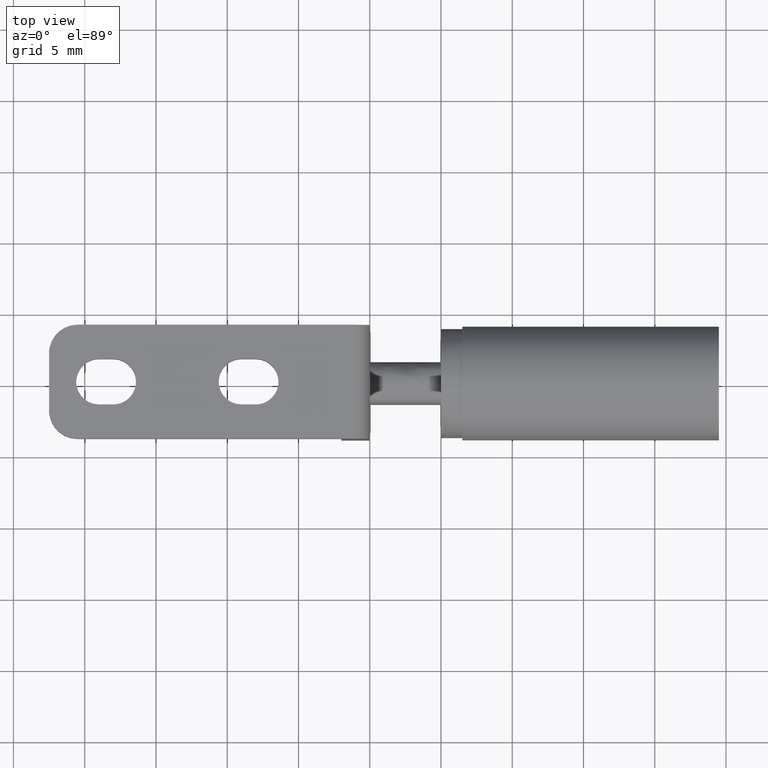
[diagram: clean part render]
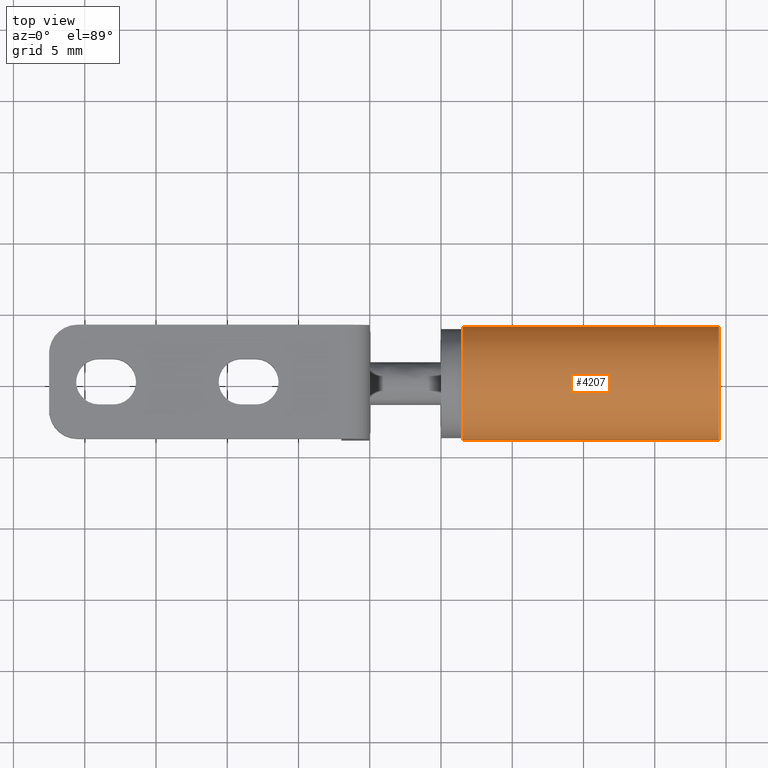
[diagram: same view with one face highlighted and labeled with its STEP entity id]
A machine part, top view. The second image highlights one B-rep face of the part: STEP entity #4207.
In plain terms, the highlighted face is a freeform B-spline surface patch.
Its self-contained STEP definition (entity closure, byte-faithful):
#4040=CARTESIAN_POINT('',(24.500000000000000,1.500000000000000,-3.708098999999890));
#4041=VERTEX_POINT('',#4040);
#4054=CARTESIAN_POINT('',(6.500000000000000,1.500000000000000,-3.708098999999890));
#4055=VERTEX_POINT('',#4054);
#4061=CARTESIAN_POINT('',(24.500000000000000,1.500000000000000,-3.708098999999890));
#4062=CARTESIAN_POINT('',(6.500000000000000,1.500000000000000,-3.708098999999890));
#4063=QUASI_UNIFORM_CURVE('',1,(#4061,#4062),.UNSPECIFIED.,.F.,.U.);
#4064=EDGE_CURVE('',#4041,#4055,#4063,.T.);
#4104=CARTESIAN_POINT('',(24.500000000000000,-1.500000000000000,-3.708098999999890));
#4105=VERTEX_POINT('',#4104);
#4111=CARTESIAN_POINT('',(6.500000000000000,-1.500000000000000,-3.708098999999890));
#4112=VERTEX_POINT('',#4111);
#4113=CARTESIAN_POINT('',(24.500000000000000,-1.500000000000000,-3.708098999999890));
#4114=CARTESIAN_POINT('',(6.500000000000000,-1.500000000000000,-3.708098999999890));
#4115=QUASI_UNIFORM_CURVE('',1,(#4113,#4114),.UNSPECIFIED.,.F.,.U.);
#4116=EDGE_CURVE('',#4105,#4112,#4115,.T.);
#4139=CARTESIAN_POINT('',(24.949999999999999,1.402419350777658,-3.746093960989815));
#4140=CARTESIAN_POINT('',(6.038750000000000,1.402419350777658,-3.746093960989815));
#4141=CARTESIAN_POINT('',(24.949999999999999,4.545765411799646,-2.569324400996401));
#4142=CARTESIAN_POINT('',(6.038749999999999,4.545765411799646,-2.569324400996401));
#4143=CARTESIAN_POINT('',(24.949999999999999,3.932709940882361,0.730611059925211));
#4144=CARTESIAN_POINT('',(6.038750000000000,3.932709940882361,0.730611059925211));
#4145=CARTESIAN_POINT('',(24.949999999999999,3.319654469965077,4.030546520846822));
#4146=CARTESIAN_POINT('',(6.038749999999999,3.319654469965077,4.030546520846822));
#4147=CARTESIAN_POINT('',(24.949999999999999,-0.036603521723970,3.999832519268449));
#4148=CARTESIAN_POINT('',(6.038750000000000,-0.036603521723970,3.999832519268449));
#4149=CARTESIAN_POINT('',(24.949999999999999,-3.392861513413018,3.969118517690077));
#4150=CARTESIAN_POINT('',(6.038749999999999,-3.392861513413018,3.969118517690077));
#4151=CARTESIAN_POINT('',(24.949999999999999,-3.945422210569480,0.658516195962576));
#4152=CARTESIAN_POINT('',(6.038750000000000,-3.945422210569480,0.658516195962576));
#4153=CARTESIAN_POINT('',(24.949999999999999,-4.497982907725942,-2.652086125764923));
#4154=CARTESIAN_POINT('',(6.038749999999999,-4.497982907725942,-2.652086125764923));
#4155=CARTESIAN_POINT('',(24.949999999999999,-1.333627232260074,-3.771132244482327));
#4156=CARTESIAN_POINT('',(6.038750000000000,-1.333627232260074,-3.771132244482327));
#4164=(BOUNDED_SURFACE()B_SPLINE_SURFACE(1,2,((#4139,#4141,#4143,#4145,#4147,#4149,#4151,#4153,#4155),(#4140,#4142,#4144,#4146,#4148,#4150,#4152,#4154,#4156)),.UNSPECIFIED.,.F.,.F.,.U.)B_SPLINE_SURFACE_WITH_KNOTS((2,2),(3,2,2,2,3),(0.0,18.911249999999999),(0.0,5.823523748259236,11.647047496518470,17.470571244777709,23.294094993036939),.UNSPECIFIED.)GEOMETRIC_REPRESENTATION_ITEM()RATIONAL_B_SPLINE_SURFACE(((1.0,0.766044443118978,1.0,0.766044443118978,1.0,0.766044443118978,1.0,0.766044443118978,1.0),(1.0,0.766044443118978,1.0,0.766044443118978,1.0,0.766044443118978,1.0,0.766044443118978,1.0)))REPRESENTATION_ITEM('')SURFACE());
#4165=CARTESIAN_POINT('',(6.500000000000000,1.500000000000000,-3.708098999999890));
#4166=CARTESIAN_POINT('',(6.499999999999999,4.556060525679802,-2.471861810696168));
#4167=CARTESIAN_POINT('',(6.500000000000000,3.926346701273055,0.764069094651916));
#4168=CARTESIAN_POINT('',(6.499999999999999,3.296632876866310,4.000000000000001));
#4169=CARTESIAN_POINT('',(6.500000000000000,0.0,4.0));
#4170=CARTESIAN_POINT('',(6.499999999999999,-3.296632876866309,4.000000000000001));
#4171=CARTESIAN_POINT('',(6.500000000000000,-3.926346701273055,0.764069094651918));
#4172=CARTESIAN_POINT('',(6.499999999999999,-4.556060525679802,-2.471861810696165));
#4173=CARTESIAN_POINT('',(6.500000000000000,-1.500000000000000,-3.708098999999890));
#4181=(BOUNDED_CURVE()B_SPLINE_CURVE(2,(#4165,#4166,#4167,#4168,#4169,#4170,#4171,#4172,#4173),.UNSPECIFIED.,.F.,.U.)B_SPLINE_CURVE_WITH_KNOTS((3,2,2,2,3),(0.0,0.250000000000000,0.500000000000000,0.750000000000000,1.0),.UNSPECIFIED.)CURVE()GEOMETRIC_REPRESENTATION_ITEM()RATIONAL_B_SPLINE_CURVE((1.0,0.771692060884061,1.0,0.771692060884061,1.0,0.771692060884061,1.0,0.771692060884061,1.0))REPRESENTATION_ITEM(''));
#4182=EDGE_CURVE('',#4055,#4112,#4181,.T.);
#4183=ORIENTED_EDGE('',*,*,#4182,.T.);
#4184=ORIENTED_EDGE('',*,*,#4116,.F.);
#4185=CARTESIAN_POINT('',(24.500000000000000,1.500000000000000,-3.708098999999890));
#4186=CARTESIAN_POINT('',(24.500000000000000,4.556060525679802,-2.471861810696168));
#4187=CARTESIAN_POINT('',(24.500000000000000,3.926346701273055,0.764069094651916));
#4188=CARTESIAN_POINT('',(24.500000000000000,3.296632876866310,4.000000000000001));
#4189=CARTESIAN_POINT('',(24.500000000000000,0.0,4.0));
#4190=CARTESIAN_POINT('',(24.500000000000000,-3.296632876866309,4.000000000000001));
#4191=CARTESIAN_POINT('',(24.500000000000000,-3.926346701273055,0.764069094651918));
#4192=CARTESIAN_POINT('',(24.500000000000000,-4.556060525679802,-2.471861810696165));
#4193=CARTESIAN_POINT('',(24.500000000000000,-1.500000000000000,-3.708098999999890));
#4201=(BOUNDED_CURVE()B_SPLINE_CURVE(2,(#4185,#4186,#4187,#4188,#4189,#4190,#4191,#4192,#4193),.UNSPECIFIED.,.F.,.U.)B_SPLINE_CURVE_WITH_KNOTS((3,2,2,2,3),(0.0,0.250000000000000,0.500000000000000,0.750000000000000,1.0),.UNSPECIFIED.)CURVE()GEOMETRIC_REPRESENTATION_ITEM()RATIONAL_B_SPLINE_CURVE((1.0,0.771692060884061,1.0,0.771692060884061,1.0,0.771692060884061,1.0,0.771692060884061,1.0))REPRESENTATION_ITEM(''));
#4202=EDGE_CURVE('',#4041,#4105,#4201,.T.);
#4203=ORIENTED_EDGE('',*,*,#4202,.F.);
#4204=ORIENTED_EDGE('',*,*,#4064,.T.);
#4205=EDGE_LOOP('',(#4183,#4184,#4203,#4204));
#4206=FACE_OUTER_BOUND('',#4205,.T.);
#4207=ADVANCED_FACE('',(#4206),#4164,.T.);